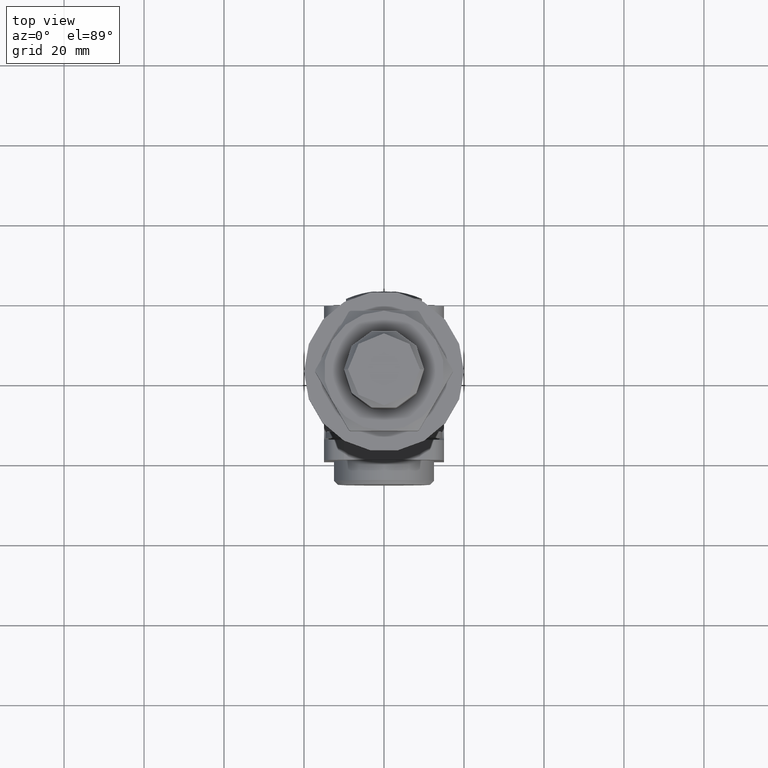
[diagram: clean part render]
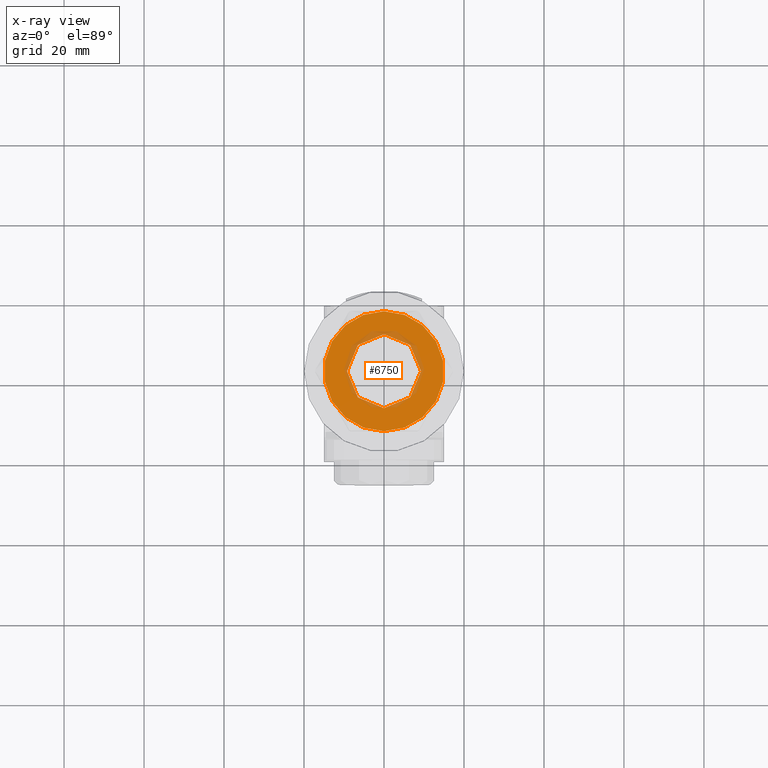
[diagram: x-ray — body ghosted, one internal face saturated and labeled with its STEP entity id]
A machine part, top view, then the same camera in x-ray: the body is ghosted and one INTERNAL B-rep face — a face not visible from any outside direction — is saturated and labeled: STEP entity #6750.
In plain terms, the highlighted planar face has unit normal (0, 0, 1).
Its self-contained STEP definition (entity closure, byte-faithful):
#286 = VERTEX_POINT ( 'NONE', #18516 ) ;
#437 = ORIENTED_EDGE ( 'NONE', *, *, #11740, .T. ) ;
#541 = CARTESIAN_POINT ( 'NONE',  ( 0.000000000000000000, -4.500000000000003553, 0.000000000000000000 ) ) ;
#867 = AXIS2_PLACEMENT_3D ( 'NONE', #9537, #5356, #6500 ) ;
#969 = ORIENTED_EDGE ( 'NONE', *, *, #6281, .T. ) ;
#1080 = EDGE_CURVE ( 'NONE', #16878, #13516, #3540, .T. ) ;
#1217 = EDGE_CURVE ( 'NONE', #13516, #9797, #9210, .T. ) ;
#1338 = VERTEX_POINT ( 'NONE', #9842 ) ;
#1386 = CARTESIAN_POINT ( 'NONE',  ( 0.000000000000000000, -4.500000000000003553, 0.000000000000000000 ) ) ;
#1697 = CIRCLE ( 'NONE', #10914, 14.99999999999980638 ) ;
#2237 = DIRECTION ( 'NONE',  ( 0.000000000000000000, 0.000000000000000000, -1.000000000000000000 ) ) ;
#2253 = CIRCLE ( 'NONE', #3941, 14.99999999999980638 ) ;
#2671 = DIRECTION ( 'NONE',  ( 0.000000000000000000, 0.000000000000000000, 1.000000000000000000 ) ) ;
#2827 = EDGE_CURVE ( 'NONE', #4327, #1338, #1697, .T. ) ;
#2934 = CARTESIAN_POINT ( 'NONE',  ( 0.000000000000000000, -4.500000000000003553, 0.000000000000000000 ) ) ;
#3380 = ORIENTED_EDGE ( 'NONE', *, *, #14633, .T. ) ;
#3459 = CIRCLE ( 'NONE', #10570, 9.249999999999873879 ) ;
#3469 = CARTESIAN_POINT ( 'NONE',  ( 12.99038105676638111, -4.500000000000003553, 7.499999999999895195 ) ) ;
#3540 = CIRCLE ( 'NONE', #15523, 14.99999999999980638 ) ;
#3672 = CARTESIAN_POINT ( 'NONE',  ( 0.000000000000000000, -4.500000000000003553, 0.000000000000000000 ) ) ;
#3910 = VERTEX_POINT ( 'NONE', #3469 ) ;
#3941 = AXIS2_PLACEMENT_3D ( 'NONE', #1386, #17079, #15414 ) ;
#4027 = ORIENTED_EDGE ( 'NONE', *, *, #15747, .T. ) ;
#4327 = VERTEX_POINT ( 'NONE', #11837 ) ;
#5175 = AXIS2_PLACEMENT_3D ( 'NONE', #12591, #11065, #2237 ) ;
#5331 = ORIENTED_EDGE ( 'NONE', *, *, #2827, .T. ) ;
#5356 = DIRECTION ( 'NONE',  ( 0.000000000000000000, 1.000000000000000000, 0.000000000000000000 ) ) ;
#5590 = PLANE ( 'NONE',  #16792 ) ;
#5707 = DIRECTION ( 'NONE',  ( -0.000000000000000000, -1.000000000000000000, -0.000000000000000000 ) ) ;
#5721 = DIRECTION ( 'NONE',  ( 0.000000000000000000, 1.000000000000000000, 0.000000000000000000 ) ) ;
#6281 = EDGE_CURVE ( 'NONE', #286, #18635, #3459, .T. ) ;
#6285 = CARTESIAN_POINT ( 'NONE',  ( 0.000000000000000000, -4.500000000000003553, -9.249999999999873879 ) ) ;
#6500 = DIRECTION ( 'NONE',  ( 0.000000000000000000, 0.000000000000000000, 1.000000000000000000 ) ) ;
#6750 = ADVANCED_FACE ( 'NONE', ( #16154, #17525 ), #5590, .F. ) ;
#6869 = CARTESIAN_POINT ( 'NONE',  ( 0.000000000000000000, -4.500000000000003553, 0.000000000000000000 ) ) ;
#7102 = CARTESIAN_POINT ( 'NONE',  ( 0.000000000000000000, -4.500000000000003553, 0.000000000000000000 ) ) ;
#7453 = AXIS2_PLACEMENT_3D ( 'NONE', #2934, #5707, #2671 ) ;
#8142 = CIRCLE ( 'NONE', #15067, 14.99999999999980638 ) ;
#8277 = EDGE_CURVE ( 'NONE', #9797, #3910, #8142, .T. ) ;
#9061 = CIRCLE ( 'NONE', #7453, 14.99999999999980638 ) ;
#9210 = CIRCLE ( 'NONE', #5175, 14.99999999999980638 ) ;
#9279 = CARTESIAN_POINT ( 'NONE',  ( 12.99038105676637578, -4.500000000000003553, -7.499999999999804601 ) ) ;
#9537 = CARTESIAN_POINT ( 'NONE',  ( 0.000000000000000000, -4.500000000000003553, 0.000000000000000000 ) ) ;
#9797 = VERTEX_POINT ( 'NONE', #9279 ) ;
#9842 = CARTESIAN_POINT ( 'NONE',  ( -12.99038105676637933, -4.500000000000003553, 7.499999999999897859 ) ) ;
#10087 = DIRECTION ( 'NONE',  ( -0.000000000000000000, -1.000000000000000000, -0.000000000000000000 ) ) ;
#10570 = AXIS2_PLACEMENT_3D ( 'NONE', #3672, #12468, #13977 ) ;
#10716 = DIRECTION ( 'NONE',  ( -0.000000000000000000, -1.000000000000000000, -0.000000000000000000 ) ) ;
#10914 = AXIS2_PLACEMENT_3D ( 'NONE', #541, #10716, #12185 ) ;
#11065 = DIRECTION ( 'NONE',  ( 0.000000000000000000, -1.000000000000000000, 0.000000000000000000 ) ) ;
#11166 = CIRCLE ( 'NONE', #867, 9.249999999999873879 ) ;
#11269 = DIRECTION ( 'NONE',  ( 1.776356839400250465E-15, 0.000000000000000000, 1.000000000000000000 ) ) ;
#11740 = EDGE_CURVE ( 'NONE', #18635, #286, #11166, .T. ) ;
#11837 = CARTESIAN_POINT ( 'NONE',  ( 4.814824860968088538E-32, -4.500000000000003553, 14.99999999999979394 ) ) ;
#12064 = ORIENTED_EDGE ( 'NONE', *, *, #1217, .T. ) ;
#12185 = DIRECTION ( 'NONE',  ( 0.000000000000000000, 0.000000000000000000, 1.000000000000000000 ) ) ;
#12425 = EDGE_LOOP ( 'NONE', ( #4027, #5331, #3380, #18831, #12064, #14139 ) ) ;
#12468 = DIRECTION ( 'NONE',  ( 0.000000000000000000, 1.000000000000000000, 0.000000000000000000 ) ) ;
#12591 = CARTESIAN_POINT ( 'NONE',  ( 0.000000000000000000, -4.500000000000003553, 0.000000000000000000 ) ) ;
#12965 = DIRECTION ( 'NONE',  ( 0.000000000000000000, 0.000000000000000000, 1.000000000000000000 ) ) ;
#13075 = DIRECTION ( 'NONE',  ( -1.776356839400250465E-15, 0.000000000000000000, 1.000000000000000000 ) ) ;
#13098 = CARTESIAN_POINT ( 'NONE',  ( -12.99038105676637933, -4.500000000000003553, -7.499999999999880984 ) ) ;
#13516 = VERTEX_POINT ( 'NONE', #16884 ) ;
#13977 = DIRECTION ( 'NONE',  ( 0.000000000000000000, 0.000000000000000000, 1.000000000000000000 ) ) ;
#14139 = ORIENTED_EDGE ( 'NONE', *, *, #8277, .T. ) ;
#14633 = EDGE_CURVE ( 'NONE', #1338, #16878, #9061, .T. ) ;
#15067 = AXIS2_PLACEMENT_3D ( 'NONE', #17338, #10087, #13075 ) ;
#15414 = DIRECTION ( 'NONE',  ( -8.881784197001252323E-16, 0.000000000000000000, 1.000000000000000000 ) ) ;
#15523 = AXIS2_PLACEMENT_3D ( 'NONE', #6869, #18497, #11269 ) ;
#15747 = EDGE_CURVE ( 'NONE', #3910, #4327, #2253, .T. ) ;
#16154 = FACE_BOUND ( 'NONE', #16830, .T. ) ;
#16792 = AXIS2_PLACEMENT_3D ( 'NONE', #7102, #5721, #12965 ) ;
#16830 = EDGE_LOOP ( 'NONE', ( #437, #969 ) ) ;
#16878 = VERTEX_POINT ( 'NONE', #13098 ) ;
#16884 = CARTESIAN_POINT ( 'NONE',  ( -1.502314598737137732E-15, -4.500000000000003553, -14.99999999999979572 ) ) ;
#17079 = DIRECTION ( 'NONE',  ( -0.000000000000000000, -1.000000000000000000, -0.000000000000000000 ) ) ;
#17338 = CARTESIAN_POINT ( 'NONE',  ( 0.000000000000000000, -4.500000000000003553, 0.000000000000000000 ) ) ;
#17525 = FACE_OUTER_BOUND ( 'NONE', #12425, .T. ) ;
#18497 = DIRECTION ( 'NONE',  ( -0.000000000000000000, -1.000000000000000000, -0.000000000000000000 ) ) ;
#18516 = CARTESIAN_POINT ( 'NONE',  ( 1.132798289211286513E-15, -4.500000000000003553, 9.249999999999873879 ) ) ;
#18635 = VERTEX_POINT ( 'NONE', #6285 ) ;
#18831 = ORIENTED_EDGE ( 'NONE', *, *, #1080, .T. ) ;